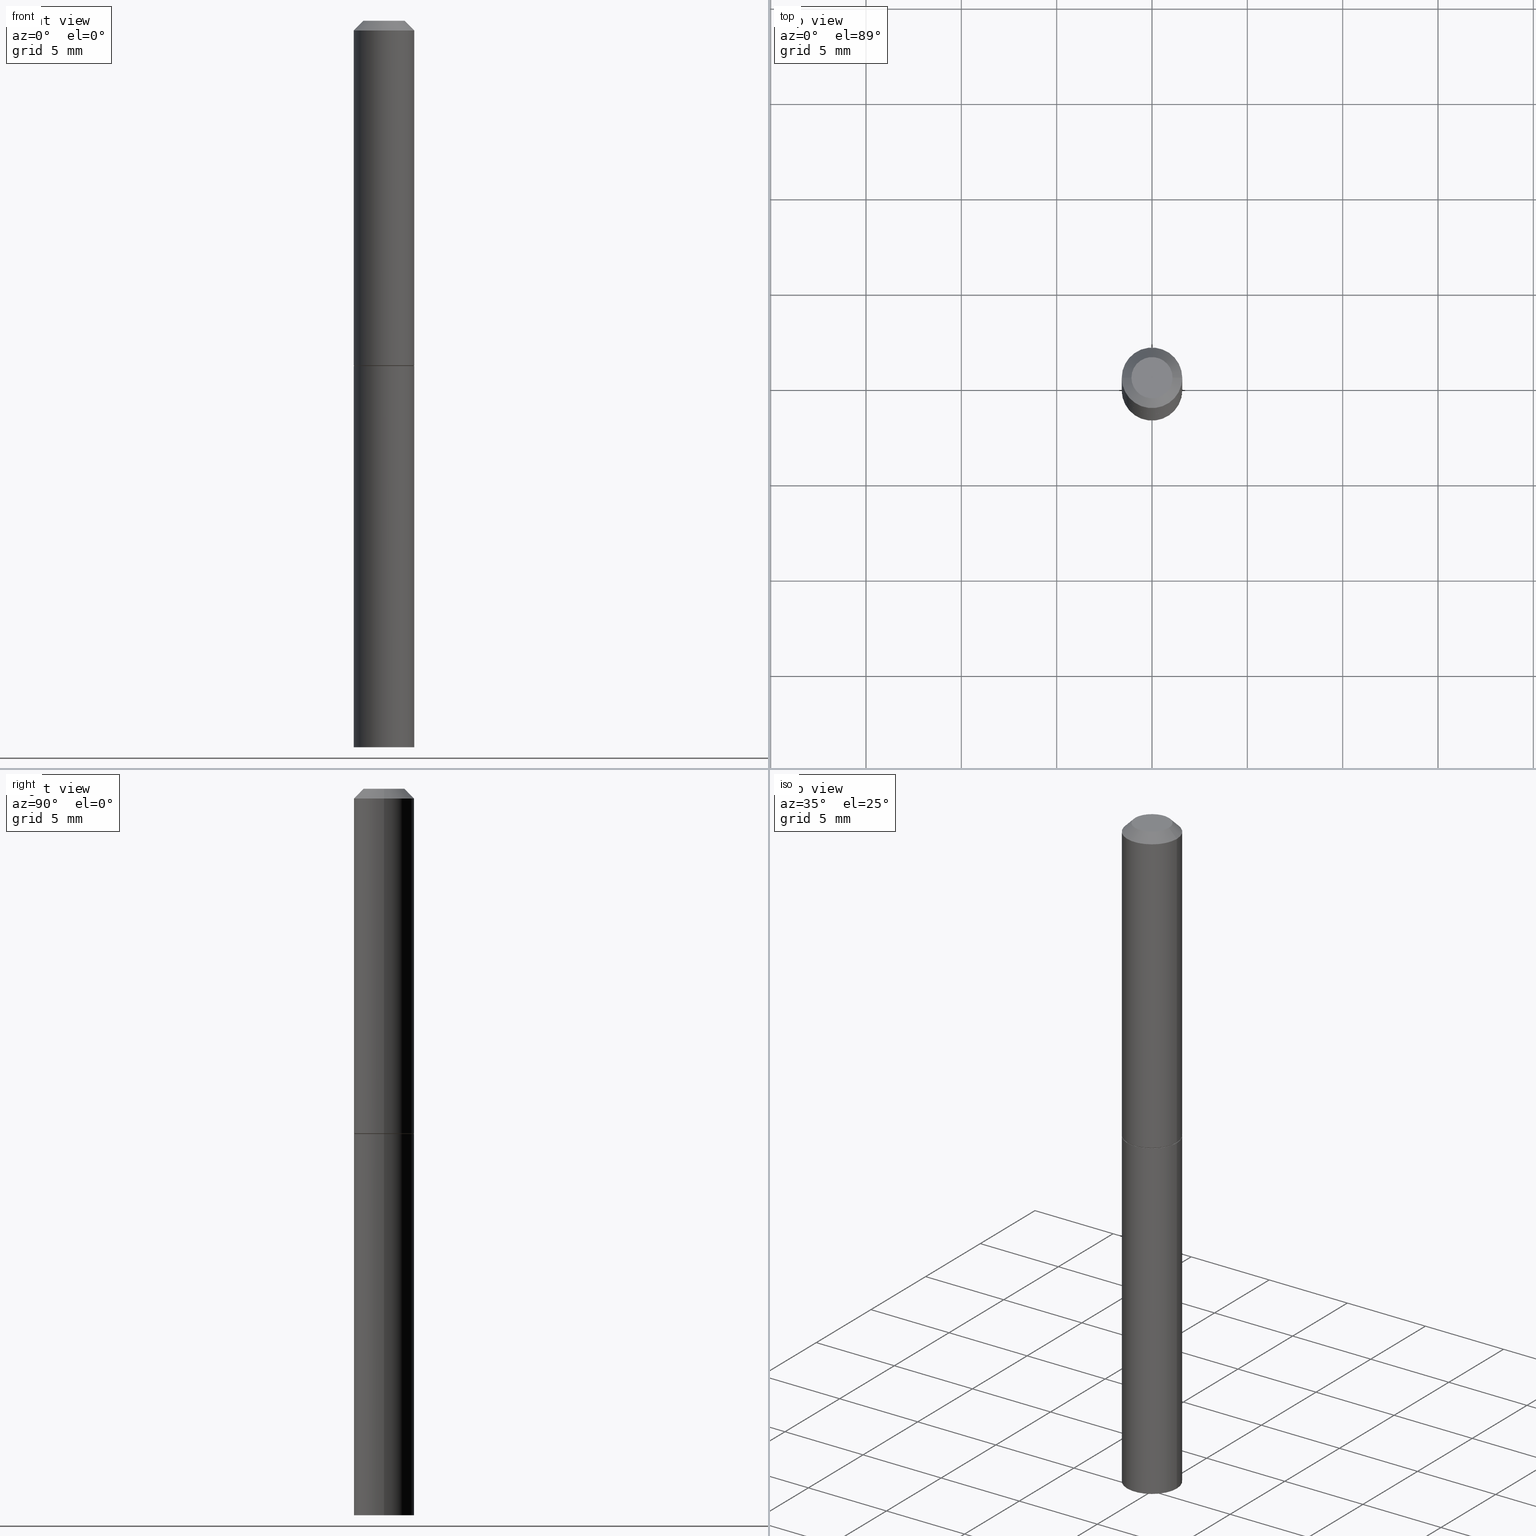
[diagram: canonical four-view strip — front | top / right | iso, engineering-drawing reading convention]
A machine part, canonical four-view strip (front | top / right | iso — engineering-drawing reading convention). The complete STEP part file that produces these views, byte-faithful:
ISO-10303-21;
HEADER;
FILE_DESCRIPTION (( 'STEP AP203' ),
    '1' );
FILE_NAME ('32672.STEP',
    '2022-04-27T15:46:52',
    ( '' ),
    ( '' ),
    'SwSTEP 2.0',
    'SolidWorks 2022',
    '' );
FILE_SCHEMA (( 'CONFIG_CONTROL_DESIGN' ));
ENDSEC;

DATA;
#1 = DIRECTION ( 'NONE',  ( -1.000000000000000000, 6.982962677686266711E-15, 0.000000000000000000 ) ) ;
#2 = ADVANCED_FACE ( 'NONE', ( #347 ), #204, .T. ) ;
#3 = EDGE_LOOP ( 'NONE', ( #150, #264, #188 ) ) ;
#4 = FACE_OUTER_BOUND ( 'NONE', #352, .T. ) ;
#5 = PERSON_AND_ORGANIZATION ( #210, #383 ) ;
#6 = COORDINATED_UNIVERSAL_TIME_OFFSET ( 5, 0, .BEHIND. ) ;
#7 = ORIENTED_EDGE ( 'NONE', *, *, #226, .T. ) ;
#8 = ORIENTED_EDGE ( 'NONE', *, *, #119, .T. ) ;
#9 = CARTESIAN_POINT ( 'NONE',  ( -0.04249999999999995448, 3.316907271900969686E-16, -5.549066237130754373E-17 ) ) ;
#10 = VERTEX_POINT ( 'NONE', #318 ) ;
#11 = LINE ( 'NONE', #197, #370 ) ;
#12 = CIRCLE ( 'NONE', #268, 0.06250000000000001388 ) ;
#13 = CARTESIAN_POINT ( 'NONE',  ( 4.890937612370294178E-31, -6.982962677686321191E-17, -0.02000000000000008715 ) ) ;
#14 =( GEOMETRIC_REPRESENTATION_CONTEXT ( 3 ) GLOBAL_UNCERTAINTY_ASSIGNED_CONTEXT ( ( #112 ) ) GLOBAL_UNIT_ASSIGNED_CONTEXT ( ( #65, #184, #348 ) ) REPRESENTATION_CONTEXT ( 'NONE', 'WORKASPACE' ) );
#15 = DIRECTION ( 'NONE',  ( -2.445468806185136877E-29, 3.491481338843145188E-15, 1.000000000000000000 ) ) ;
#16 = DIRECTION ( 'NONE',  ( 1.000000000000000000, -6.982962677686269077E-15, 0.000000000000000000 ) ) ;
#17 = EDGE_CURVE ( 'NONE', #305, #175, #228, .T. ) ;
#18 = DIRECTION ( 'NONE',  ( 1.000000000000000000, -6.982962677686268288E-15, 0.000000000000000000 ) ) ;
#19 = AXIS2_PLACEMENT_3D ( 'NONE', #307, #219, #131 ) ;
#20 = DIRECTION ( 'NONE',  ( -2.445468806185136597E-29, 3.491481338843145583E-15, 1.000000000000000000 ) ) ;
#21 = ORIENTED_EDGE ( 'NONE', *, *, #290, .T. ) ;
#22 = DESIGN_CONTEXT ( 'detailed design', #77, 'design' ) ;
#23 = COORDINATED_UNIVERSAL_TIME_OFFSET ( 5, 0, .BEHIND. ) ;
#24 = ORIENTED_EDGE ( 'NONE', *, *, #17, .F. ) ;
#25 = AXIS2_PLACEMENT_3D ( 'NONE', #91, #88, #54 ) ;
#26 = APPROVAL_ROLE ( '' ) ;
#27 = DIRECTION ( 'NONE',  ( 1.000000000000000000, -6.982962677686267499E-15, 4.876176775795936353E-29 ) ) ;
#28 = CARTESIAN_POINT ( 'NONE',  ( -0.06249999999999997918, 4.440892098500624683E-16, -3.074334431409315413E-30 ) ) ;
#29 = APPROVAL ( #388, 'UNSPECIFIED' ) ;
#30 = VERTEX_POINT ( 'NONE', #311 ) ;
#31 = APPROVAL ( #223, 'UNSPECIFIED' ) ;
#32 = ADVANCED_FACE ( 'NONE', ( #58 ), #148, .T. ) ;
#33 = CALENDAR_DATE ( 2022, 27, 4 ) ;
#34 = CIRCLE ( 'NONE', #272, 0.06250000000000001388 ) ;
#35 = LOCAL_TIME ( 11, 46, 52.00000000000000000, #289 ) ;
#36 = LINE ( 'NONE', #363, #390 ) ;
#37 = PERSON_AND_ORGANIZATION_ROLE ( 'design_supplier' ) ;
#38 = FACE_OUTER_BOUND ( 'NONE', #240, .T. ) ;
#39 = CARTESIAN_POINT ( 'NONE',  ( 1.740195602481343455E-29, -2.484538120720782881E-15, -0.7116000000000001213 ) ) ;
#40 = ORIENTED_EDGE ( 'NONE', *, *, #90, .T. ) ;
#41 = DIRECTION ( 'NONE',  ( -1.000000000000000000, 6.982962677686265922E-15, -4.876176775795935793E-29 ) ) ;
#42 = EDGE_LOOP ( 'NONE', ( #220, #232 ) ) ;
#43 = DIRECTION ( 'NONE',  ( -2.445468806185136877E-29, 3.491481338843145188E-15, 1.000000000000000000 ) ) ;
#44 = CARTESIAN_POINT ( 'NONE',  ( 0.06150000000000001299, -2.917481806737331149E-15, -0.7125999999999999002 ) ) ;
#45 = CARTESIAN_POINT ( 'NONE',  ( 1.742641071287528217E-29, -2.488029602059625494E-15, -0.7125999999999999002 ) ) ;
#46 = DIRECTION ( 'NONE',  ( -2.445468806185136597E-29, 3.491481338843145583E-15, 1.000000000000000000 ) ) ;
#47 = ADVANCED_FACE ( 'NONE', ( #350 ), #330, .F. ) ;
#48 = VECTOR ( 'NONE', #76, 39.37007874015748143 ) ;
#49 = CARTESIAN_POINT ( 'NONE',  ( -0.06249999999999995143, 3.666055405785281247E-16, -0.02000000000000008715 ) ) ;
#50 = ADVANCED_FACE ( 'NONE', ( #4 ), #304, .T. ) ;
#51 = DIRECTION ( 'NONE',  ( 1.000000000000000000, -6.982962677686268288E-15, 0.000000000000000000 ) ) ;
#52 = AXIS2_PLACEMENT_3D ( 'NONE', #332, #271, #41 ) ;
#53 = AXIS2_PLACEMENT_3D ( 'NONE', #349, #323, #117 ) ;
#54 = DIRECTION ( 'NONE',  ( 1.000000000000000000, -6.982962677686266711E-15, 0.000000000000000000 ) ) ;
#55 = PERSON_AND_ORGANIZATION_ROLE ( 'creator' ) ;
#56 = LINE ( 'NONE', #60, #216 ) ;
#57 = VERTEX_POINT ( 'NONE', #70 ) ;
#58 = FACE_OUTER_BOUND ( 'NONE', #296, .T. ) ;
#59 = APPROVAL_ROLE ( '' ) ;
#60 = CARTESIAN_POINT ( 'NONE',  ( -1.592556080794020465E-17, -5.233413006173146040E-15, -1.498909058441986630 ) ) ;
#61 = DIRECTION ( 'NONE',  ( -2.445468806185136597E-29, 3.491481338843145583E-15, 1.000000000000000000 ) ) ;
#62 = EDGE_CURVE ( 'NONE', #30, #89, #312, .T. ) ;
#63 = CARTESIAN_POINT ( 'NONE',  ( 1.357006838635785746E-45, -1.937446121494581442E-31, -5.549066237130534971E-17 ) ) ;
#64 = ORIENTED_EDGE ( 'NONE', *, *, #306, .F. ) ;
#65 =( CONVERSION_BASED_UNIT ( 'INCH', #176 ) LENGTH_UNIT ( ) NAMED_UNIT ( #342 ) );
#66 = ORIENTED_EDGE ( 'NONE', *, *, #75, .F. ) ;
#67 = CARTESIAN_POINT ( 'NONE',  ( 1.742641071287528217E-29, -2.488029602059625494E-15, -0.7125999999999999002 ) ) ;
#68 = AXIS2_PLACEMENT_3D ( 'NONE', #285, #20, #384 ) ;
#69 = CONICAL_SURFACE ( 'NONE', #53, 0.06150000000000001299, 0.7853981633975507526 ) ;
#70 = CARTESIAN_POINT ( 'NONE',  ( -0.06250000000000034694, -4.800786840909323352E-15, -1.499999999999999778 ) ) ;
#71 = PERSON_AND_ORGANIZATION_ROLE ( 'classification_officer' ) ;
#72 = FACE_OUTER_BOUND ( 'NONE', #3, .T. ) ;
#73 = AXIS2_PLACEMENT_3D ( 'NONE', #67, #387, #195 ) ;
#74 = CC_DESIGN_APPROVAL ( #31, ( #365 ) ) ;
#75 = EDGE_CURVE ( 'NONE', #275, #389, #36, .T. ) ;
#76 = DIRECTION ( 'NONE',  ( 0.9998476951563912696, -6.920387862090559512E-15, -0.01745240643727649296 ) ) ;
#77 = APPLICATION_CONTEXT ( 'configuration controlled 3d designs of mechanical parts and assemblies' ) ;
#78 = DIRECTION ( 'NONE',  ( 1.000000000000000000, -6.982962677686261189E-15, 0.000000000000000000 ) ) ;
#79 = AXIS2_PLACEMENT_3D ( 'NONE', #277, #338, #78 ) ;
#80 = AXIS2_PLACEMENT_3D ( 'NONE', #85, #122, #291 ) ;
#81 = APPLICATION_CONTEXT ( 'configuration controlled 3d designs of mechanical parts and assemblies' ) ;
#82 = AXIS2_PLACEMENT_3D ( 'NONE', #372, #155, #329 ) ;
#83 = ORIENTED_EDGE ( 'NONE', *, *, #105, .T. ) ;
#84 = CALENDAR_DATE ( 2022, 27, 4 ) ;
#85 = CARTESIAN_POINT ( 'NONE',  ( 2.967759138016660098E-16, 0.04249999999999995448, -1.761332880864862221E-16 ) ) ;
#86 = ORIENTED_EDGE ( 'NONE', *, *, #366, .F. ) ;
#87 = EDGE_CURVE ( 'NONE', #30, #175, #294, .T. ) ;
#88 = DIRECTION ( 'NONE',  ( -2.445468806185136597E-29, 3.491481338843145583E-15, 1.000000000000000000 ) ) ;
#89 = VERTEX_POINT ( 'NONE', #9 ) ;
#90 = EDGE_CURVE ( 'NONE', #57, #242, #128, .T. ) ;
#91 = CARTESIAN_POINT ( 'NONE',  ( 4.890937612370294178E-31, -6.982962677686321191E-17, -0.02000000000000008715 ) ) ;
#92 = PERSON_AND_ORGANIZATION_ROLE ( 'creator' ) ;
#93 = FACE_OUTER_BOUND ( 'NONE', #127, .T. ) ;
#94 = EDGE_LOOP ( 'NONE', ( #273, #355, #257, #24 ) ) ;
#95 = CIRCLE ( 'NONE', #356, 0.06150000000000001299 ) ;
#96 = LOCAL_TIME ( 11, 46, 52.00000000000000000, #23 ) ;
#97 = EDGE_LOOP ( 'NONE', ( #129, #381, #269, #66 ) ) ;
#98 = DATE_AND_TIME ( #358, #217 ) ;
#99 = EDGE_LOOP ( 'NONE', ( #317, #7, #118, #215 ) ) ;
#100 = PERSON_AND_ORGANIZATION ( #210, #383 ) ;
#101 = AXIS2_PLACEMENT_3D ( 'NONE', #360, #236, #191 ) ;
#102 = CARTESIAN_POINT ( 'NONE',  ( 1.742641071287528217E-29, -2.488029602059625494E-15, -0.7125999999999999002 ) ) ;
#103 = EDGE_CURVE ( 'NONE', #389, #175, #369, .T. ) ;
#104 = FACE_OUTER_BOUND ( 'NONE', #97, .T. ) ;
#105 = EDGE_CURVE ( 'NONE', #361, #242, #336, .T. ) ;
#106 = DIRECTION ( 'NONE',  ( 1.000000000000000000, -6.982962677686261189E-15, 0.000000000000000000 ) ) ;
#107 = DIRECTION ( 'NONE',  ( -2.445468806185136597E-29, 3.491481338843145583E-15, 1.000000000000000000 ) ) ;
#108 = CARTESIAN_POINT ( 'NONE',  ( 1.742641071287528217E-29, -2.488029602059625494E-15, -0.7125999999999999002 ) ) ;
#109 = CIRCLE ( 'NONE', #79, 0.06250000000000001388 ) ;
#110 = PRODUCT_DEFINITION_SHAPE ( 'NONE', 'NONE',  #303 ) ;
#111 = LINE ( 'NONE', #49, #309 ) ;
#112 = UNCERTAINTY_MEASURE_WITH_UNIT (LENGTH_MEASURE( 1.000000000000000082E-05 ), #65, 'distance_accuracy_value', 'NONE');
#113 = DATE_AND_TIME ( #258, #35 ) ;
#114 = ORIENTED_EDGE ( 'NONE', *, *, #366, .T. ) ;
#115 = ADVANCED_FACE ( 'NONE', ( #104 ), #173, .T. ) ;
#116 = PRODUCT_DEFINITION_FORMATION_WITH_SPECIFIED_SOURCE ( 'ANY', '', #137, .NOT_KNOWN. ) ;
#117 = DIRECTION ( 'NONE',  ( 1.000000000000000000, -6.982962677686268288E-15, 0.000000000000000000 ) ) ;
#118 = ORIENTED_EDGE ( 'NONE', *, *, #75, .T. ) ;
#119 = EDGE_CURVE ( 'NONE', #175, #305, #377, .T. ) ;
#120 = DIRECTION ( 'NONE',  ( 1.000000000000000000, -6.982962677686267499E-15, 4.876176775795935793E-29 ) ) ;
#121 = COORDINATED_UNIVERSAL_TIME_OFFSET ( 5, 0, .BEHIND. ) ;
#122 = DIRECTION ( 'NONE',  ( 2.438088387897960049E-29, -3.491481338843145188E-15, -1.000000000000000000 ) ) ;
#123 = ORIENTED_EDGE ( 'NONE', *, *, #87, .T. ) ;
#124 = CARTESIAN_POINT ( 'NONE',  ( 4.890937612370294178E-31, -6.982962677686321191E-17, -0.02000000000000008715 ) ) ;
#125 = MECHANICAL_CONTEXT ( 'NONE', #81, 'mechanical' ) ;
#126 = ADVANCED_BREP_SHAPE_REPRESENTATION ( '32672', ( #301, #186, #357 ), #14 ) ;
#127 = EDGE_LOOP ( 'NONE', ( #302, #136 ) ) ;
#128 = CIRCLE ( 'NONE', #203, 0.06250000000000001388 ) ;
#129 = ORIENTED_EDGE ( 'NONE', *, *, #214, .T. ) ;
#130 = PERSON_AND_ORGANIZATION ( #210, #383 ) ;
#131 = DIRECTION ( 'NONE',  ( 1.000000000000000000, -6.982962677686267499E-15, 4.876176775795936353E-29 ) ) ;
#132 = CLOSED_SHELL ( 'NONE', ( #115, #265, #157, #50, #379, #362, #47, #313 ) ) ;
#133 = EDGE_CURVE ( 'NONE', #389, #325, #147, .T. ) ;
#134 = DIRECTION ( 'NONE',  ( -2.445468806185136597E-29, 3.491481338843145583E-15, 1.000000000000000000 ) ) ;
#135 = DATE_AND_TIME ( #33, #279 ) ;
#136 = ORIENTED_EDGE ( 'NONE', *, *, #62, .T. ) ;
#137 = PRODUCT ( '32672', '32672', '', ( #125 ) ) ;
#138 = FACE_OUTER_BOUND ( 'NONE', #368, .T. ) ;
#139 = CIRCLE ( 'NONE', #192, 0.06250000000000001388 ) ;
#140 = DIRECTION ( 'NONE',  ( 1.000000000000000000, -6.982962677686269077E-15, 0.000000000000000000 ) ) ;
#141 = CARTESIAN_POINT ( 'NONE',  ( -0.06150000000000001299, -2.051045819567163886E-15, -0.7125999999999999002 ) ) ;
#142 = EDGE_CURVE ( 'NONE', #328, #10, #34, .T. ) ;
#143 = ORIENTED_EDGE ( 'NONE', *, *, #87, .F. ) ;
#144 = ORIENTED_EDGE ( 'NONE', *, *, #154, .F. ) ;
#145 = CARTESIAN_POINT ( 'NONE',  ( 0.000000000000000000, 0.000000000000000000, 0.000000000000000000 ) ) ;
#146 = CARTESIAN_POINT ( 'NONE',  ( 3.676656105402545288E-29, -5.217487445365168417E-15, -1.498909058441986630 ) ) ;
#147 = CIRCLE ( 'NONE', #340, 0.06250000000000001388 ) ;
#148 = CYLINDRICAL_SURFACE ( 'NONE', #68, 0.06250000000000001388 ) ;
#149 = APPROVAL_DATE_TIME ( #113, #331 ) ;
#150 = ORIENTED_EDGE ( 'NONE', *, *, #105, .F. ) ;
#151 = DIRECTION ( 'NONE',  ( -2.445468806185136877E-29, 3.491481338843145188E-15, 1.000000000000000000 ) ) ;
#152 = ORIENTED_EDGE ( 'NONE', *, *, #250, .T. ) ;
#153 = COORDINATED_UNIVERSAL_TIME_OFFSET ( 5, 0, .BEHIND. ) ;
#154 = EDGE_CURVE ( 'NONE', #89, #305, #111, .T. ) ;
#155 = DIRECTION ( 'NONE',  ( 2.445468806185136597E-29, -3.491481338843145583E-15, -1.000000000000000000 ) ) ;
#156 = APPROVAL_ROLE ( '' ) ;
#157 = ADVANCED_FACE ( 'NONE', ( #165 ), #278, .T. ) ;
#158 = DIRECTION ( 'NONE',  ( -2.445468806185136597E-29, 3.491481338843145583E-15, 1.000000000000000000 ) ) ;
#159 = AXIS2_PLACEMENT_3D ( 'NONE', #172, #314, #120 ) ;
#160 = ORIENTED_EDGE ( 'NONE', *, *, #250, .F. ) ;
#161 = DIRECTION ( 'NONE',  ( 0.7071067811865469066, -7.319954787623254468E-15, -0.7071067811865482389 ) ) ;
#162 = ORIENTED_EDGE ( 'NONE', *, *, #17, .T. ) ;
#163 = CYLINDRICAL_SURFACE ( 'NONE', #19, 0.06249999999999997918 ) ;
#164 = CARTESIAN_POINT ( 'NONE',  ( 0.06249999999999997918, -4.364351673553915708E-16, 3.047610484872459170E-30 ) ) ;
#165 = FACE_OUTER_BOUND ( 'NONE', #229, .T. ) ;
#166 = DIRECTION ( 'NONE',  ( 1.000000000000000000, -6.982962677686266711E-15, 0.000000000000000000 ) ) ;
#167 = AXIS2_PLACEMENT_3D ( 'NONE', #170, #283, #18 ) ;
#168 = CIRCLE ( 'NONE', #249, 0.04249999999999995448 ) ;
#169 = CARTESIAN_POINT ( 'NONE',  ( 1.740195602481343455E-29, -2.484538120720782881E-15, -0.7116000000000001213 ) ) ;
#170 = CARTESIAN_POINT ( 'NONE',  ( 1.742641071287528217E-29, -2.488029602059625494E-15, -0.7125999999999999002 ) ) ;
#171 = CC_DESIGN_PERSON_AND_ORGANIZATION_ASSIGNMENT ( #5, #37, ( #116 ) ) ;
#172 = CARTESIAN_POINT ( 'NONE',  ( 0.000000000000000000, 0.000000000000000000, 0.000000000000000000 ) ) ;
#173 = CONICAL_SURFACE ( 'NONE', #237, 0.06150000000000001299, 0.7853981633975507526 ) ;
#174 = EDGE_CURVE ( 'NONE', #242, #57, #109, .T. ) ;
#175 = VERTEX_POINT ( 'NONE', #281 ) ;
#176 = LENGTH_MEASURE_WITH_UNIT ( LENGTH_MEASURE( 0.02539999999999999897 ), #295 );
#177 = CARTESIAN_POINT ( 'NONE',  ( -0.06250000000000001388, -8.330946638987597832E-16, -0.7116000000000001213 ) ) ;
#178 = ORIENTED_EDGE ( 'NONE', *, *, #90, .F. ) ;
#179 = APPROVAL_DATE_TIME ( #98, #29 ) ;
#180 = ORIENTED_EDGE ( 'NONE', *, *, #133, .T. ) ;
#181 = VECTOR ( 'NONE', #376, 39.37007874015748143 ) ;
#182 = VECTOR ( 'NONE', #354, 39.37007874015748143 ) ;
#183 = PERSON_AND_ORGANIZATION ( #210, #383 ) ;
#184 =( NAMED_UNIT ( * ) PLANE_ANGLE_UNIT ( ) SI_UNIT ( $, .RADIAN. ) );
#185 = ORIENTED_EDGE ( 'NONE', *, *, #227, .F. ) ;
#186 = MANIFOLD_SOLID_BREP ( 'Body-Move/Copy2[2]', #132 ) ;
#187 = DIRECTION ( 'NONE',  ( 2.445468806185136597E-29, -3.491481338843145583E-15, -1.000000000000000000 ) ) ;
#188 = ORIENTED_EDGE ( 'NONE', *, *, #174, .F. ) ;
#189 = PRODUCT_RELATED_PRODUCT_CATEGORY ( 'detail', '', ( #137 ) ) ;
#190 = EDGE_CURVE ( 'NONE', #209, #325, #308, .T. ) ;
#191 = DIRECTION ( 'NONE',  ( 1.000000000000000000, -6.982962677686267499E-15, 4.870577812114089772E-29 ) ) ;
#192 = AXIS2_PLACEMENT_3D ( 'NONE', #169, #252, #253 ) ;
#193 = EDGE_CURVE ( 'NONE', #325, #389, #139, .T. ) ;
#194 = CALENDAR_DATE ( 2022, 27, 4 ) ;
#195 = DIRECTION ( 'NONE',  ( 1.000000000000000000, -6.982962677686265922E-15, 4.876176775795935793E-29 ) ) ;
#196 = CIRCLE ( 'NONE', #167, 0.06150000000000001299 ) ;
#197 = CARTESIAN_POINT ( 'NONE',  ( -0.06250000000000001388, 4.440892098500627148E-16, -3.074334431409317165E-30 ) ) ;
#198 = DIRECTION ( 'NONE',  ( 1.000000000000000000, -6.982962677686268288E-15, 0.000000000000000000 ) ) ;
#199 = DIRECTION ( 'NONE',  ( -0.7071067811865469066, 2.468850131082249961E-15, -0.7071067811865482389 ) ) ;
#200 = AXIS2_PLACEMENT_3D ( 'NONE', #124, #187, #1 ) ;
#201 = DIRECTION ( 'NONE',  ( -1.000000000000000000, 6.982962677686266711E-15, 0.000000000000000000 ) ) ;
#202 = CC_DESIGN_PERSON_AND_ORGANIZATION_ASSIGNMENT ( #233, #92, ( #116 ) ) ;
#203 = AXIS2_PLACEMENT_3D ( 'NONE', #246, #282, #106 ) ;
#204 = CYLINDRICAL_SURFACE ( 'NONE', #159, 0.06250000000000001388 ) ;
#205 = FACE_OUTER_BOUND ( 'NONE', #94, .T. ) ;
#206 = CARTESIAN_POINT ( 'NONE',  ( 0.000000000000000000, 0.000000000000000000, 0.000000000000000000 ) ) ;
#207 = DIRECTION ( 'NONE',  ( 2.445468806185136597E-29, -3.491481338843145583E-15, -1.000000000000000000 ) ) ;
#208 = DIRECTION ( 'NONE',  ( -1.000000000000000000, 6.982962677686268288E-15, 0.000000000000000000 ) ) ;
#209 = VERTEX_POINT ( 'NONE', #373 ) ;
#210 = PERSON ( 'UNSPECIFIED', 'UNSPECIFIED', 'UNSPECIFIED', ('UNSPECIFIED'), ('UNSPECIFIED'), ('UNSPECIFIED') ) ;
#211 = LINE ( 'NONE', #386, #182 ) ;
#212 = ORIENTED_EDGE ( 'NONE', *, *, #154, .T. ) ;
#213 = PERSON_AND_ORGANIZATION ( #210, #383 ) ;
#214 = EDGE_CURVE ( 'NONE', #275, #209, #95, .T. ) ;
#215 = ORIENTED_EDGE ( 'NONE', *, *, #193, .F. ) ;
#216 = VECTOR ( 'NONE', #263, 39.37007874015748143 ) ;
#217 = LOCAL_TIME ( 11, 46, 52.00000000000000000, #121 ) ;
#218 = ORIENTED_EDGE ( 'NONE', *, *, #227, .T. ) ;
#219 = DIRECTION ( 'NONE',  ( -2.445468806185136597E-29, 3.491481338843145583E-15, 1.000000000000000000 ) ) ;
#220 = ORIENTED_EDGE ( 'NONE', *, *, #214, .F. ) ;
#221 = FACE_OUTER_BOUND ( 'NONE', #346, .T. ) ;
#222 = DIRECTION ( 'NONE',  ( -2.445468806185136597E-29, 3.491481338843145583E-15, 1.000000000000000000 ) ) ;
#223 = APPROVAL_STATUS ( 'not_yet_approved' ) ;
#224 = ORIENTED_EDGE ( 'NONE', *, *, #343, .F. ) ;
#225 = CARTESIAN_POINT ( 'NONE',  ( 4.890937612370294178E-31, -6.982962677686321191E-17, -0.02000000000000008715 ) ) ;
#226 = EDGE_CURVE ( 'NONE', #209, #275, #196, .T. ) ;
#227 = EDGE_CURVE ( 'NONE', #10, #328, #12, .T. ) ;
#228 = CIRCLE ( 'NONE', #25, 0.06249999999999995143 ) ;
#229 = EDGE_LOOP ( 'NONE', ( #298, #123, #8, #144 ) ) ;
#230 = VECTOR ( 'NONE', #151, 39.37007874015748143 ) ;
#231 = PLANE ( 'NONE',  #80 ) ;
#232 = ORIENTED_EDGE ( 'NONE', *, *, #226, .F. ) ;
#233 = PERSON_AND_ORGANIZATION ( #210, #383 ) ;
#234 = DIRECTION ( 'NONE',  ( 1.000000000000000000, -6.982962677686267499E-15, 4.870577812114089772E-29 ) ) ;
#235 = CC_DESIGN_DATE_AND_TIME_ASSIGNMENT ( #324, #297, ( #303 ) ) ;
#236 = DIRECTION ( 'NONE',  ( -2.445468806185136597E-29, 3.491481338843145583E-15, 1.000000000000000000 ) ) ;
#237 = AXIS2_PLACEMENT_3D ( 'NONE', #102, #134, #198 ) ;
#238 = DIRECTION ( 'NONE',  ( 1.000000000000000000, 0.000000000000000000, 0.000000000000000000 ) ) ;
#239 = ADVANCED_FACE ( 'NONE', ( #221 ), #251, .F. ) ;
#240 = EDGE_LOOP ( 'NONE', ( #180, #21, #260, #374 ) ) ;
#241 = DATE_TIME_ROLE ( 'classification_date' ) ;
#242 = VERTEX_POINT ( 'NONE', #335 ) ;
#243 = CLOSED_SHELL ( 'NONE', ( #2, #276, #287, #32, #239 ) ) ;
#244 = DIRECTION ( 'NONE',  ( 1.000000000000000000, -6.982962677686269077E-15, 0.000000000000000000 ) ) ;
#245 = APPROVAL_DATE_TIME ( #299, #31 ) ;
#246 = CARTESIAN_POINT ( 'NONE',  ( 3.668203209277704335E-29, -5.237222008264717388E-15, -1.499999999999999778 ) ) ;
#247 = CC_DESIGN_DATE_AND_TIME_ASSIGNMENT ( #135, #241, ( #365 ) ) ;
#248 = AXIS2_PLACEMENT_3D ( 'NONE', #13, #337, #201 ) ;
#249 = AXIS2_PLACEMENT_3D ( 'NONE', #63, #288, #234 ) ;
#250 = EDGE_CURVE ( 'NONE', #57, #10, #11, .T. ) ;
#251 = PLANE ( 'NONE',  #52 ) ;
#252 = DIRECTION ( 'NONE',  ( -2.445468806185136597E-29, 3.491481338843145583E-15, 1.000000000000000000 ) ) ;
#253 = DIRECTION ( 'NONE',  ( 1.000000000000000000, -6.982962677686269077E-15, 0.000000000000000000 ) ) ;
#254 = VECTOR ( 'NONE', #161, 39.37007874015748143 ) ;
#255 = AXIS2_PLACEMENT_3D ( 'NONE', #145, #61, #27 ) ;
#256 = PERSON_AND_ORGANIZATION ( #210, #383 ) ;
#257 = ORIENTED_EDGE ( 'NONE', *, *, #103, .T. ) ;
#258 = CALENDAR_DATE ( 2022, 27, 4 ) ;
#259 = FACE_OUTER_BOUND ( 'NONE', #99, .T. ) ;
#260 = ORIENTED_EDGE ( 'NONE', *, *, #119, .F. ) ;
#261 = APPROVAL_PERSON_ORGANIZATION ( #130, #31, #156 ) ;
#262 = CYLINDRICAL_SURFACE ( 'NONE', #255, 0.06249999999999997918 ) ;
#263 = DIRECTION ( 'NONE',  ( -0.9998476951563912696, 6.920964387254060733E-15, -0.01745240643727649296 ) ) ;
#264 = ORIENTED_EDGE ( 'NONE', *, *, #306, .T. ) ;
#265 = ADVANCED_FACE ( 'NONE', ( #38 ), #163, .T. ) ;
#266 = DIRECTION ( 'NONE',  ( 0.000000000000000000, 0.000000000000000000, 1.000000000000000000 ) ) ;
#267 = CARTESIAN_POINT ( 'NONE',  ( 0.06249999999999995143, -4.986107516375836264E-16, -0.02000000000000008715 ) ) ;
#268 = AXIS2_PLACEMENT_3D ( 'NONE', #45, #107, #16 ) ;
#269 = ORIENTED_EDGE ( 'NONE', *, *, #133, .F. ) ;
#270 = SHAPE_DEFINITION_REPRESENTATION ( #110, #126 ) ;
#271 = DIRECTION ( 'NONE',  ( 2.438088387897960049E-29, -3.491481338843145188E-15, -1.000000000000000000 ) ) ;
#272 = AXIS2_PLACEMENT_3D ( 'NONE', #367, #222, #140 ) ;
#273 = ORIENTED_EDGE ( 'NONE', *, *, #290, .F. ) ;
#274 = CC_DESIGN_PERSON_AND_ORGANIZATION_ASSIGNMENT ( #100, #71, ( #365 ) ) ;
#275 = VERTEX_POINT ( 'NONE', #44 ) ;
#276 = ADVANCED_FACE ( 'NONE', ( #138 ), #284, .F. ) ;
#277 = CARTESIAN_POINT ( 'NONE',  ( 3.668203209277704335E-29, -5.237222008264717388E-15, -1.499999999999999778 ) ) ;
#278 = CONICAL_SURFACE ( 'NONE', #248, 0.06249999999999995143, 0.7853981633974473908 ) ;
#279 = LOCAL_TIME ( 11, 46, 52.00000000000000000, #6 ) ;
#280 = APPROVAL_PERSON_ORGANIZATION ( #380, #29, #59 ) ;
#281 = CARTESIAN_POINT ( 'NONE',  ( 0.06249999999999995143, -4.986107516375836264E-16, -0.02000000000000008715 ) ) ;
#282 = DIRECTION ( 'NONE',  ( -2.445468806185136597E-29, 3.491481338843145583E-15, 1.000000000000000000 ) ) ;
#283 = DIRECTION ( 'NONE',  ( -2.445468806185136597E-29, 3.491481338843145583E-15, 1.000000000000000000 ) ) ;
#284 = CONICAL_SURFACE ( 'NONE', #82, 2255.510300424507022, 1.553343034274960344 ) ;
#285 = CARTESIAN_POINT ( 'NONE',  ( 0.000000000000000000, 0.000000000000000000, 0.000000000000000000 ) ) ;
#286 = ORIENTED_EDGE ( 'NONE', *, *, #142, .F. ) ;
#287 = ADVANCED_FACE ( 'NONE', ( #72 ), #382, .F. ) ;
#288 = DIRECTION ( 'NONE',  ( -2.445468806185136597E-29, 3.491481338843145583E-15, 1.000000000000000000 ) ) ;
#289 = COORDINATED_UNIVERSAL_TIME_OFFSET ( 5, 0, .BEHIND. ) ;
#290 = EDGE_CURVE ( 'NONE', #325, #305, #321, .T. ) ;
#291 = DIRECTION ( 'NONE',  ( -1.000000000000000000, 6.982962677686265922E-15, -4.876176775795935793E-29 ) ) ;
#292 = VECTOR ( 'NONE', #15, 39.37007874015748143 ) ;
#293 = CC_DESIGN_SECURITY_CLASSIFICATION ( #365, ( #116 ) ) ;
#294 = LINE ( 'NONE', #267, #254 ) ;
#295 =( LENGTH_UNIT ( ) NAMED_UNIT ( * ) SI_UNIT ( $, .METRE. ) );
#296 = EDGE_LOOP ( 'NONE', ( #160, #40, #114, #185 ) ) ;
#297 = DATE_TIME_ROLE ( 'creation_date' ) ;
#298 = ORIENTED_EDGE ( 'NONE', *, *, #62, .F. ) ;
#299 = DATE_AND_TIME ( #194, #378 ) ;
#300 = CARTESIAN_POINT ( 'NONE',  ( 9.994383480183596546E-28, -1.426933082362182574E-13, -40.86898779859946274 ) ) ;
#301 = MANIFOLD_SOLID_BREP ( 'Body-Move/Copy2[1]', #243 ) ;
#302 = ORIENTED_EDGE ( 'NONE', *, *, #343, .T. ) ;
#303 = PRODUCT_DEFINITION ( 'UNKNOWN', '', #116, #22 ) ;
#304 = CONICAL_SURFACE ( 'NONE', #200, 0.06249999999999995143, 0.7853981633974473908 ) ;
#305 = VERTEX_POINT ( 'NONE', #320 ) ;
#306 = EDGE_CURVE ( 'NONE', #361, #57, #56, .T. ) ;
#307 = CARTESIAN_POINT ( 'NONE',  ( 0.000000000000000000, 0.000000000000000000, 0.000000000000000000 ) ) ;
#308 = LINE ( 'NONE', #141, #181 ) ;
#309 = VECTOR ( 'NONE', #199, 39.37007874015748143 ) ;
#310 = DIRECTION ( 'NONE',  ( -2.445468806185136597E-29, 3.491481338843145583E-15, 1.000000000000000000 ) ) ;
#311 = CARTESIAN_POINT ( 'NONE',  ( 0.04249999999999995448, -3.950909582714367445E-16, -5.549066237130292766E-17 ) ) ;
#312 = CIRCLE ( 'NONE', #101, 0.04249999999999995448 ) ;
#313 = ADVANCED_FACE ( 'NONE', ( #93 ), #231, .F. ) ;
#314 = DIRECTION ( 'NONE',  ( -2.445468806185136597E-29, 3.491481338843145583E-15, 1.000000000000000000 ) ) ;
#315 = PERSON_AND_ORGANIZATION_ROLE ( 'design_owner' ) ;
#316 = CARTESIAN_POINT ( 'NONE',  ( 0.06250000000000001388, -2.924464769415017163E-15, -0.7125999999999999002 ) ) ;
#317 = ORIENTED_EDGE ( 'NONE', *, *, #190, .F. ) ;
#318 = CARTESIAN_POINT ( 'NONE',  ( -0.06250000000000001388, -3.418536595312108430E-15, -0.7125999999999999002 ) ) ;
#319 = APPLICATION_PROTOCOL_DEFINITION ( 'international standard', 'config_control_design', 1994, #81 ) ;
#320 = CARTESIAN_POINT ( 'NONE',  ( -0.06249999999999995143, 3.666055405785281247E-16, -0.02000000000000008715 ) ) ;
#321 = LINE ( 'NONE', #28, #230 ) ;
#322 = APPROVAL_PERSON_ORGANIZATION ( #256, #331, #26 ) ;
#323 = DIRECTION ( 'NONE',  ( -2.445468806185136597E-29, 3.491481338843145583E-15, 1.000000000000000000 ) ) ;
#324 = DATE_AND_TIME ( #84, #96 ) ;
#325 = VERTEX_POINT ( 'NONE', #177 ) ;
#326 = AXIS2_PLACEMENT_3D ( 'NONE', #225, #46, #166 ) ;
#327 = SECURITY_CLASSIFICATION_LEVEL ( 'unclassified' ) ;
#328 = VERTEX_POINT ( 'NONE', #316 ) ;
#329 = DIRECTION ( 'NONE',  ( -1.000000000000000000, 6.982962677686268288E-15, 0.000000000000000000 ) ) ;
#330 = PLANE ( 'NONE',  #73 ) ;
#331 = APPROVAL ( #351, 'UNSPECIFIED' ) ;
#332 = CARTESIAN_POINT ( 'NONE',  ( 4.364351673554091230E-16, 0.06249999999999752975, -0.7126000000000002332 ) ) ;
#333 = ORIENTED_EDGE ( 'NONE', *, *, #142, .T. ) ;
#334 = CC_DESIGN_APPROVAL ( #331, ( #116 ) ) ;
#335 = CARTESIAN_POINT ( 'NONE',  ( 0.06250000000000034694, -5.666003133125440477E-15, -1.499999999999999778 ) ) ;
#336 = LINE ( 'NONE', #339, #48 ) ;
#337 = DIRECTION ( 'NONE',  ( 2.445468806185136597E-29, -3.491481338843145583E-15, -1.000000000000000000 ) ) ;
#338 = DIRECTION ( 'NONE',  ( -2.445468806185136597E-29, 3.491481338843145583E-15, 1.000000000000000000 ) ) ;
#339 = CARTESIAN_POINT ( 'NONE',  ( 1.592556080801351633E-17, -5.233413006173146040E-15, -1.498909058441986630 ) ) ;
#340 = AXIS2_PLACEMENT_3D ( 'NONE', #39, #158, #244 ) ;
#341 = CC_DESIGN_PERSON_AND_ORGANIZATION_ASSIGNMENT ( #213, #55, ( #303 ) ) ;
#342 = DIMENSIONAL_EXPONENTS ( 1.000000000000000000, 0.000000000000000000, 0.000000000000000000, 0.000000000000000000, 0.000000000000000000, 0.000000000000000000, 0.000000000000000000 ) ;
#343 = EDGE_CURVE ( 'NONE', #89, #30, #168, .T. ) ;
#344 = APPLICATION_PROTOCOL_DEFINITION ( 'international standard', 'config_control_design', 1994, #77 ) ;
#345 = AXIS2_PLACEMENT_3D ( 'NONE', #300, #207, #208 ) ;
#346 = EDGE_LOOP ( 'NONE', ( #333, #218 ) ) ;
#347 = FACE_OUTER_BOUND ( 'NONE', #364, .T. ) ;
#348 =( NAMED_UNIT ( * ) SI_UNIT ( $, .STERADIAN. ) SOLID_ANGLE_UNIT ( ) );
#349 = CARTESIAN_POINT ( 'NONE',  ( 1.742641071287528217E-29, -2.488029602059625494E-15, -0.7125999999999999002 ) ) ;
#350 = FACE_OUTER_BOUND ( 'NONE', #42, .T. ) ;
#351 = APPROVAL_STATUS ( 'not_yet_approved' ) ;
#352 = EDGE_LOOP ( 'NONE', ( #143, #224, #212, #162 ) ) ;
#353 = DIRECTION ( 'NONE',  ( 0.7071067811866199593, -2.468850131083015945E-15, 0.7071067811864750752 ) ) ;
#354 = DIRECTION ( 'NONE',  ( -2.445468806185136877E-29, 3.491481338843145188E-15, 1.000000000000000000 ) ) ;
#355 = ORIENTED_EDGE ( 'NONE', *, *, #193, .T. ) ;
#356 = AXIS2_PLACEMENT_3D ( 'NONE', #108, #310, #51 ) ;
#357 = AXIS2_PLACEMENT_3D ( 'NONE', #206, #266, #238 ) ;
#358 = CALENDAR_DATE ( 2022, 27, 4 ) ;
#359 = ORIENTED_EDGE ( 'NONE', *, *, #174, .T. ) ;
#360 = CARTESIAN_POINT ( 'NONE',  ( 1.357006838635785746E-45, -1.937446121494581442E-31, -5.549066237130534971E-17 ) ) ;
#361 = VERTEX_POINT ( 'NONE', #146 ) ;
#362 = ADVANCED_FACE ( 'NONE', ( #259 ), #69, .T. ) ;
#363 = CARTESIAN_POINT ( 'NONE',  ( 0.06150000000000001299, -2.917481806737331149E-15, -0.7125999999999999002 ) ) ;
#364 = EDGE_LOOP ( 'NONE', ( #359, #152, #286, #86 ) ) ;
#365 = SECURITY_CLASSIFICATION ( '', '', #327 ) ;
#366 = EDGE_CURVE ( 'NONE', #242, #328, #211, .T. ) ;
#367 = CARTESIAN_POINT ( 'NONE',  ( 1.742641071287528217E-29, -2.488029602059625494E-15, -0.7125999999999999002 ) ) ;
#368 = EDGE_LOOP ( 'NONE', ( #64, #83, #178 ) ) ;
#369 = LINE ( 'NONE', #164, #292 ) ;
#370 = VECTOR ( 'NONE', #43, 39.37007874015748143 ) ;
#371 = CC_DESIGN_APPROVAL ( #29, ( #303 ) ) ;
#372 = CARTESIAN_POINT ( 'NONE',  ( 9.994383480183596546E-28, -1.426933082362182574E-13, -40.86898779859946274 ) ) ;
#373 = CARTESIAN_POINT ( 'NONE',  ( -0.06150000000000001299, -2.045747365218941878E-15, -0.7125999999999999002 ) ) ;
#374 = ORIENTED_EDGE ( 'NONE', *, *, #103, .F. ) ;
#375 = CC_DESIGN_PERSON_AND_ORGANIZATION_ASSIGNMENT ( #183, #315, ( #137 ) ) ;
#376 = DIRECTION ( 'NONE',  ( -0.7071067811866199593, 7.493145998870616062E-15, 0.7071067811864750752 ) ) ;
#377 = CIRCLE ( 'NONE', #326, 0.06249999999999995143 ) ;
#378 = LOCAL_TIME ( 11, 46, 52.00000000000000000, #153 ) ;
#379 = ADVANCED_FACE ( 'NONE', ( #205 ), #262, .T. ) ;
#380 = PERSON_AND_ORGANIZATION ( #210, #383 ) ;
#381 = ORIENTED_EDGE ( 'NONE', *, *, #190, .T. ) ;
#382 = CONICAL_SURFACE ( 'NONE', #345, 2255.510300424507022, 1.553343034274960344 ) ;
#383 = ORGANIZATION ( 'UNSPECIFIED', 'UNSPECIFIED', '' ) ;
#384 = DIRECTION ( 'NONE',  ( 1.000000000000000000, -6.982962677686267499E-15, 4.876176775795935793E-29 ) ) ;
#385 = CARTESIAN_POINT ( 'NONE',  ( 0.06250000000000001388, -2.920973288076174551E-15, -0.7116000000000001213 ) ) ;
#386 = CARTESIAN_POINT ( 'NONE',  ( 0.06250000000000001388, -4.364351673553918173E-16, 3.047610484872460571E-30 ) ) ;
#387 = DIRECTION ( 'NONE',  ( -2.438088387897960049E-29, 3.491481338843145188E-15, 1.000000000000000000 ) ) ;
#388 = APPROVAL_STATUS ( 'not_yet_approved' ) ;
#389 = VERTEX_POINT ( 'NONE', #385 ) ;
#390 = VECTOR ( 'NONE', #353, 39.37007874015748143 ) ;
ENDSEC;
END-ISO-10303-21;
